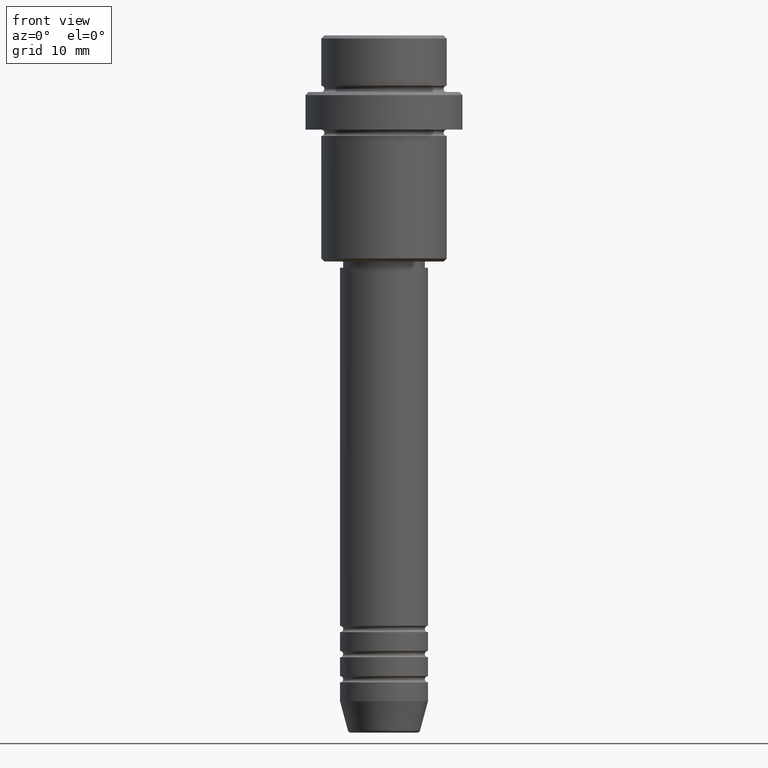
[diagram: clean part render]
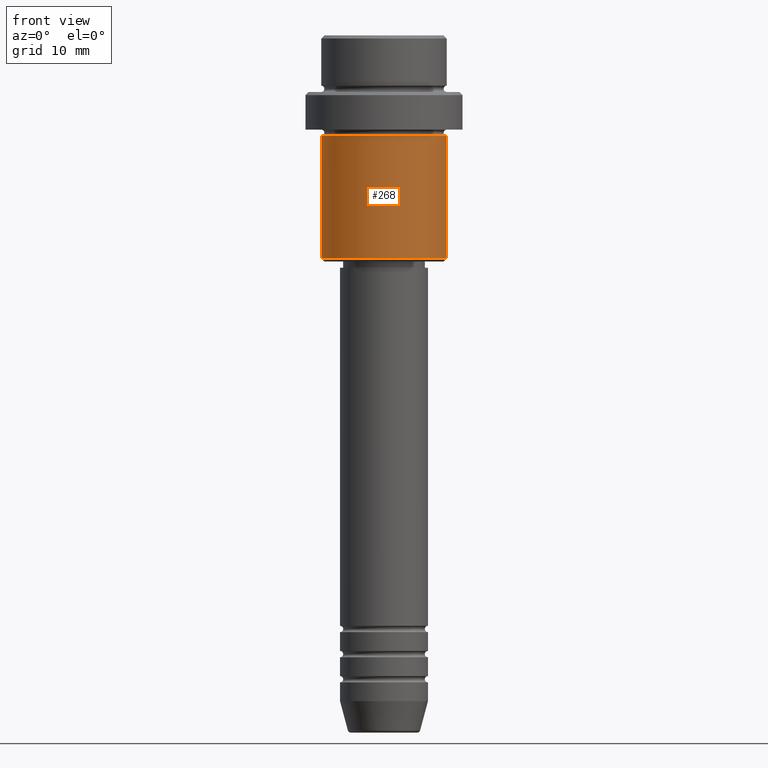
[diagram: same view with one face highlighted and labeled with its STEP entity id]
A machine part, front view. The second image highlights one B-rep face of the part: STEP entity #268.
In plain terms, the highlighted cylindrical surface (partial cylindrical patch) has radius 10 mm, axis along (-0, -0, 1).
Its self-contained STEP definition (entity closure, byte-faithful):
#27 = CARTESIAN_POINT ( 'NONE',  ( -10.00000000000000000, 1.224646799147353256E-15, 0.000000000000000000 ) ) ;
#28 = CARTESIAN_POINT ( 'NONE',  ( 0.000000000000000000, 0.000000000000000000, -16.00000000000000000 ) ) ;
#38 = DIRECTION ( 'NONE',  ( -0.000000000000000000, -0.000000000000000000, 1.000000000000000000 ) ) ;
#47 = DIRECTION ( 'NONE',  ( 1.000000000000000000, 0.000000000000000000, 0.000000000000000000 ) ) ;
#56 = CARTESIAN_POINT ( 'NONE',  ( -10.00000000000000000, 1.224646799147353256E-15, -16.00000000000000000 ) ) ;
#80 = AXIS2_PLACEMENT_3D ( 'NONE', #1257, #38, #47 ) ;
#85 = ORIENTED_EDGE ( 'NONE', *, *, #795, .F. ) ;
#220 = VECTOR ( 'NONE', #771, 1000.000000000000000 ) ;
#237 = AXIS2_PLACEMENT_3D ( 'NONE', #926, #663, #1362 ) ;
#246 = VECTOR ( 'NONE', #1007, 1000.000000000000000 ) ;
#268 = ADVANCED_FACE ( 'NONE', ( #362 ), #792, .T. ) ;
#318 = ORIENTED_EDGE ( 'NONE', *, *, #421, .F. ) ;
#336 = CIRCLE ( 'NONE', #1138, 10.00000000000000000 ) ;
#341 = CARTESIAN_POINT ( 'NONE',  ( 10.00000000000000000, 0.000000000000000000, 0.000000000000000000 ) ) ;
#362 = FACE_OUTER_BOUND ( 'NONE', #556, .T. ) ;
#379 = ORIENTED_EDGE ( 'NONE', *, *, #1195, .T. ) ;
#380 = EDGE_CURVE ( 'NONE', #676, #430, #644, .T. ) ;
#421 = EDGE_CURVE ( 'NONE', #589, #796, #557, .T. ) ;
#430 = VERTEX_POINT ( 'NONE', #1367 ) ;
#455 = DIRECTION ( 'NONE',  ( -0.000000000000000000, -0.000000000000000000, 1.000000000000000000 ) ) ;
#472 = DIRECTION ( 'NONE',  ( 1.000000000000000000, 0.000000000000000000, 0.000000000000000000 ) ) ;
#556 = EDGE_LOOP ( 'NONE', ( #318, #379, #1310, #85 ) ) ;
#557 = LINE ( 'NONE', #27, #246 ) ;
#589 = VERTEX_POINT ( 'NONE', #1095 ) ;
#622 = CARTESIAN_POINT ( 'NONE',  ( 10.00000000000000000, 0.000000000000000000, -35.49999999999999289 ) ) ;
#644 = LINE ( 'NONE', #341, #220 ) ;
#663 = DIRECTION ( 'NONE',  ( -0.000000000000000000, -0.000000000000000000, 1.000000000000000000 ) ) ;
#676 = VERTEX_POINT ( 'NONE', #622 ) ;
#771 = DIRECTION ( 'NONE',  ( -0.000000000000000000, -0.000000000000000000, 1.000000000000000000 ) ) ;
#792 = CYLINDRICAL_SURFACE ( 'NONE', #80, 10.00000000000000000 ) ;
#795 = EDGE_CURVE ( 'NONE', #796, #430, #336, .T. ) ;
#796 = VERTEX_POINT ( 'NONE', #56 ) ;
#820 = CIRCLE ( 'NONE', #237, 10.00000000000000000 ) ;
#926 = CARTESIAN_POINT ( 'NONE',  ( 0.000000000000000000, 0.000000000000000000, -35.49999999999999289 ) ) ;
#1007 = DIRECTION ( 'NONE',  ( -0.000000000000000000, -0.000000000000000000, 1.000000000000000000 ) ) ;
#1095 = CARTESIAN_POINT ( 'NONE',  ( -10.00000000000000000, 1.224646799147353256E-15, -35.49999999999999289 ) ) ;
#1138 = AXIS2_PLACEMENT_3D ( 'NONE', #28, #455, #472 ) ;
#1195 = EDGE_CURVE ( 'NONE', #589, #676, #820, .T. ) ;
#1257 = CARTESIAN_POINT ( 'NONE',  ( 0.000000000000000000, 0.000000000000000000, 0.000000000000000000 ) ) ;
#1310 = ORIENTED_EDGE ( 'NONE', *, *, #380, .T. ) ;
#1362 = DIRECTION ( 'NONE',  ( -1.000000000000000000, 0.000000000000000000, 0.000000000000000000 ) ) ;
#1367 = CARTESIAN_POINT ( 'NONE',  ( 10.00000000000000000, 0.000000000000000000, -16.00000000000000000 ) ) ;